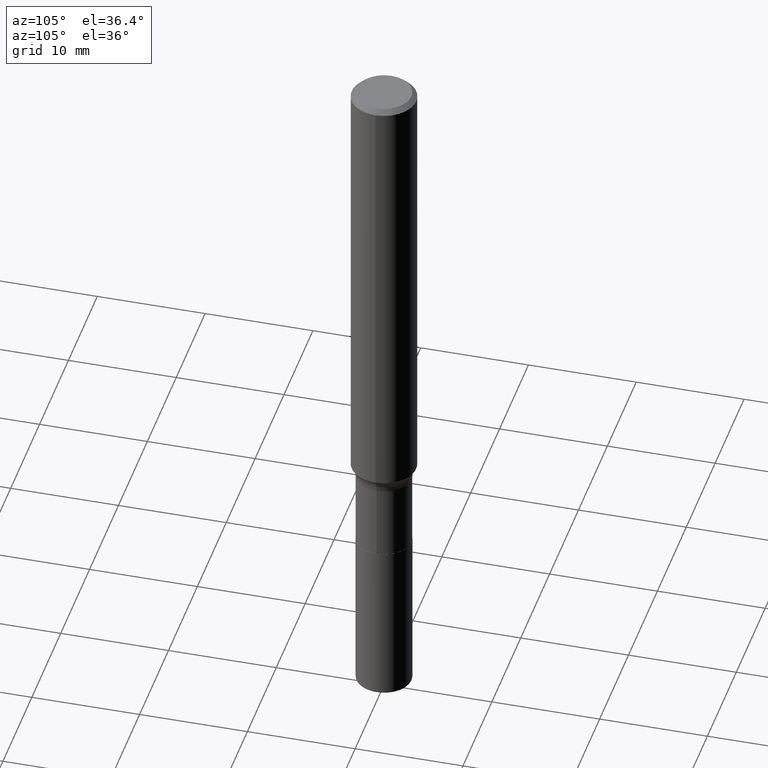
[diagram: clean part render]
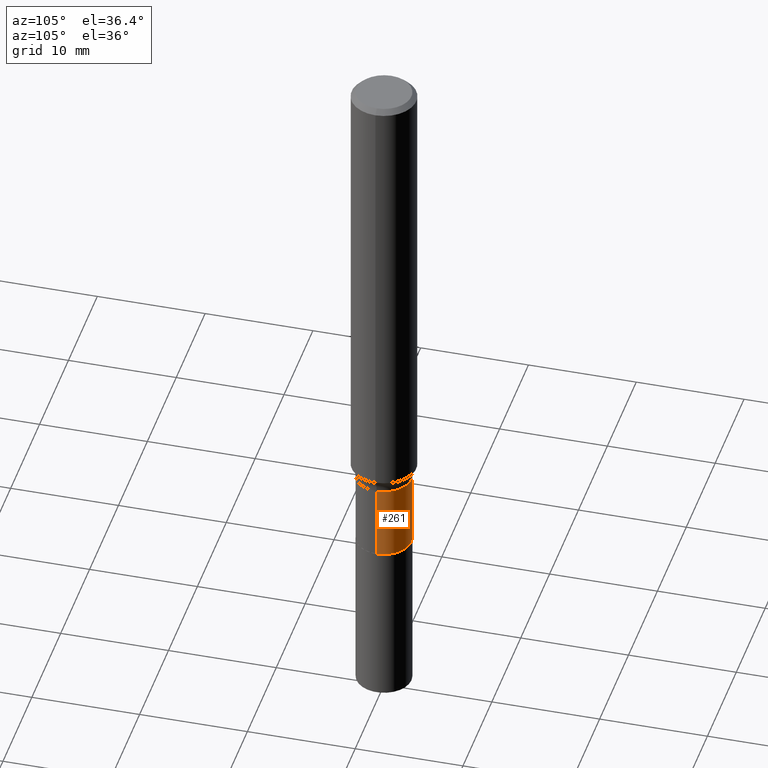
[diagram: same view with one face highlighted and labeled with its STEP entity id]
A machine part, auxiliary view. The second image highlights one B-rep face of the part: STEP entity #261.
In plain terms, the highlighted cylindrical surface (edge-blend (fillet) strip) has radius 2.5502 mm, axis along (-0, 0, 1).
Its self-contained STEP definition (entity closure, byte-faithful):
#9 = AXIS2_PLACEMENT_3D ( 'NONE', #386, #106, #465 ) ;
#12 = ORIENTED_EDGE ( 'NONE', *, *, #380, .T. ) ;
#24 = CARTESIAN_POINT ( 'NONE',  ( -0.1003999999999999754, -5.624701167698822388E-15, -1.677999999999999936 ) ) ;
#34 = DIRECTION ( 'NONE',  ( -2.445468806185136597E-29, 3.491481338843145583E-15, 1.000000000000000000 ) ) ;
#35 = DIRECTION ( 'NONE',  ( 1.000000000000000000, -6.982962677686266711E-15, 4.876176775795935232E-29 ) ) ;
#38 = EDGE_LOOP ( 'NONE', ( #133, #12, #271, #91 ) ) ;
#40 = VERTEX_POINT ( 'NONE', #224 ) ;
#41 = DIRECTION ( 'NONE',  ( -2.445468806185136877E-29, 3.491481338843145188E-15, 1.000000000000000000 ) ) ;
#60 = AXIS2_PLACEMENT_3D ( 'NONE', #428, #34, #389 ) ;
#87 = LINE ( 'NONE', #188, #333 ) ;
#91 = ORIENTED_EDGE ( 'NONE', *, *, #412, .F. ) ;
#106 = DIRECTION ( 'NONE',  ( -2.445468806185136597E-29, 3.491481338843145583E-15, 1.000000000000000000 ) ) ;
#114 = VERTEX_POINT ( 'NONE', #24 ) ;
#133 = ORIENTED_EDGE ( 'NONE', *, *, #430, .T. ) ;
#142 = EDGE_CURVE ( 'NONE', #40, #114, #408, .T. ) ;
#155 = DIRECTION ( 'NONE',  ( -2.445468806185136877E-29, 3.491481338843145188E-15, 1.000000000000000000 ) ) ;
#178 = CARTESIAN_POINT ( 'NONE',  ( -0.1003999999999999893, -5.624701167698822388E-15, -1.952600000000000113 ) ) ;
#187 = VERTEX_POINT ( 'NONE', #246 ) ;
#188 = CARTESIAN_POINT ( 'NONE',  ( 0.1003999999999999754, -7.010894528397009782E-16, 4.895681482899117754E-30 ) ) ;
#213 = FACE_OUTER_BOUND ( 'NONE', #38, .T. ) ;
#224 = CARTESIAN_POINT ( 'NONE',  ( 0.1003999999999999754, -6.559795139418498979E-15, -1.677999999999999936 ) ) ;
#246 = CARTESIAN_POINT ( 'NONE',  ( 0.1003999999999999893, -7.518555915064826604E-15, -1.952600000000000113 ) ) ;
#251 = CARTESIAN_POINT ( 'NONE',  ( 0.000000000000000000, 0.000000000000000000, 0.000000000000000000 ) ) ;
#259 = AXIS2_PLACEMENT_3D ( 'NONE', #251, #314, #35 ) ;
#260 = CARTESIAN_POINT ( 'NONE',  ( -0.1003999999999999754, 7.133849067031404116E-16, -4.938610830615923592E-30 ) ) ;
#261 = ADVANCED_FACE ( 'NONE', ( #213 ), #316, .T. ) ;
#271 = ORIENTED_EDGE ( 'NONE', *, *, #142, .F. ) ;
#291 = VERTEX_POINT ( 'NONE', #178 ) ;
#299 = VECTOR ( 'NONE', #41, 39.37007874015748143 ) ;
#314 = DIRECTION ( 'NONE',  ( -2.445468806185136597E-29, 3.491481338843145583E-15, 1.000000000000000000 ) ) ;
#316 = CYLINDRICAL_SURFACE ( 'NONE', #259, 0.1003999999999999754 ) ;
#333 = VECTOR ( 'NONE', #155, 39.37007874015748143 ) ;
#334 = LINE ( 'NONE', #260, #299 ) ;
#380 = EDGE_CURVE ( 'NONE', #291, #114, #334, .T. ) ;
#386 = CARTESIAN_POINT ( 'NONE',  ( 4.103496656778659263E-29, -5.858705686578797902E-15, -1.677999999999999936 ) ) ;
#389 = DIRECTION ( 'NONE',  ( 1.000000000000000000, -6.982962677686263555E-15, 0.000000000000000000 ) ) ;
#408 = CIRCLE ( 'NONE', #9, 0.1003999999999999754 ) ;
#412 = EDGE_CURVE ( 'NONE', #187, #40, #87, .T. ) ;
#428 = CARTESIAN_POINT ( 'NONE',  ( 4.775022390957098259E-29, -6.817466462225126316E-15, -1.952600000000000113 ) ) ;
#430 = EDGE_CURVE ( 'NONE', #187, #291, #454, .T. ) ;
#454 = CIRCLE ( 'NONE', #60, 0.1003999999999999893 ) ;
#465 = DIRECTION ( 'NONE',  ( 1.000000000000000000, -6.982962677686264344E-15, 0.000000000000000000 ) ) ;